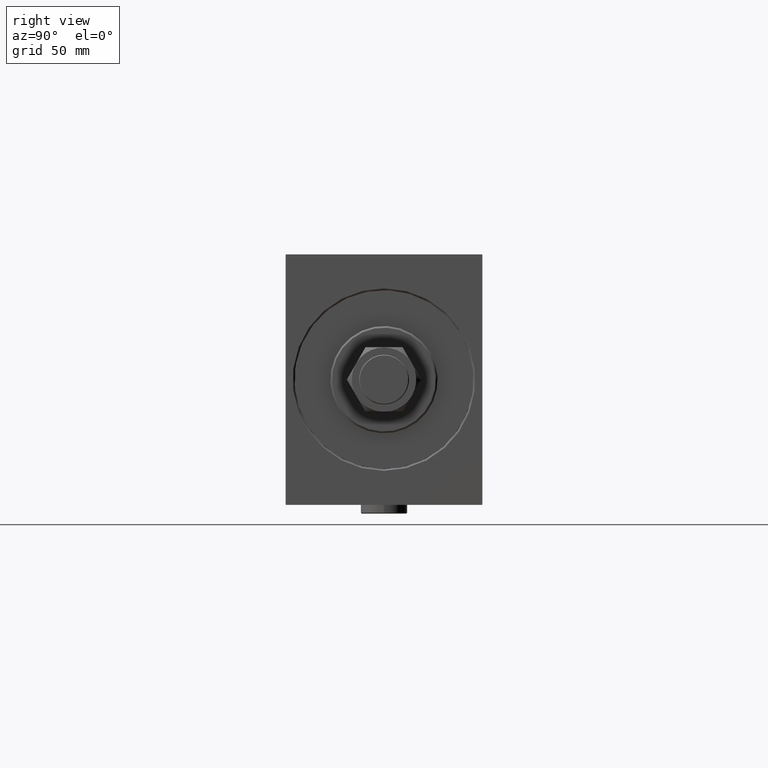
[diagram: clean part render]
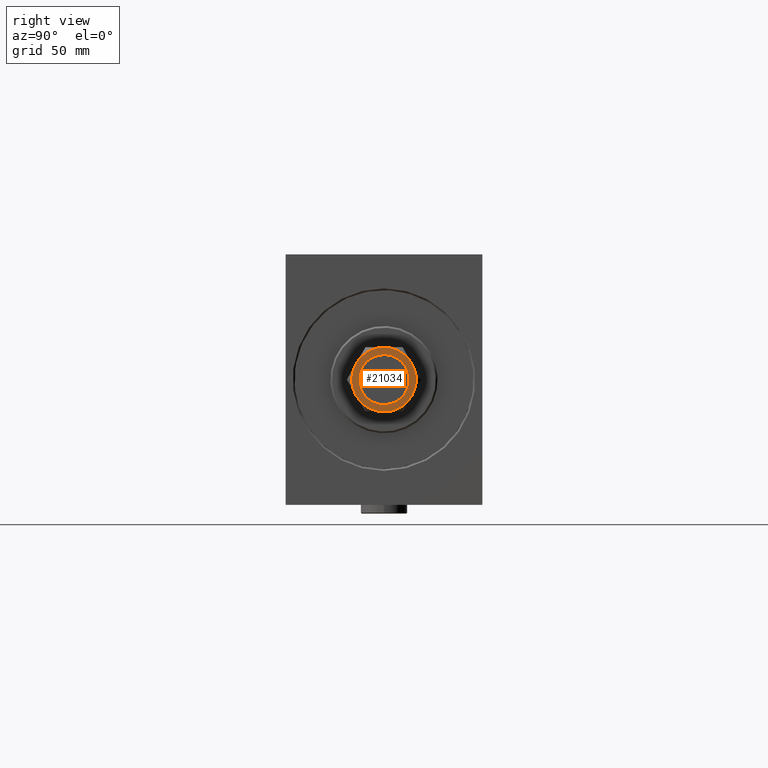
[diagram: same view with one face highlighted and labeled with its STEP entity id]
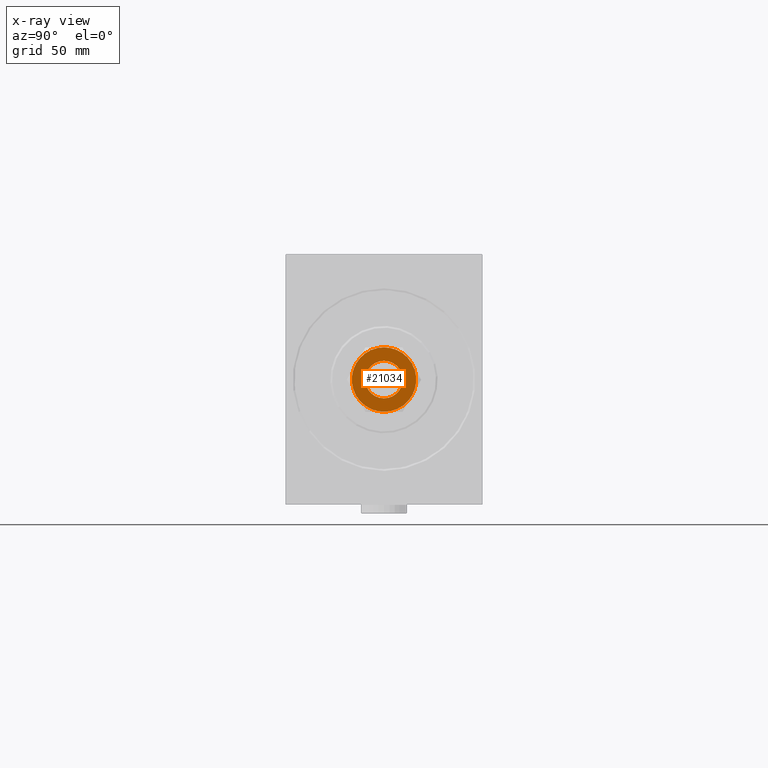
[diagram: x-ray of the same camera — body ghosted, the highlighted face saturated]
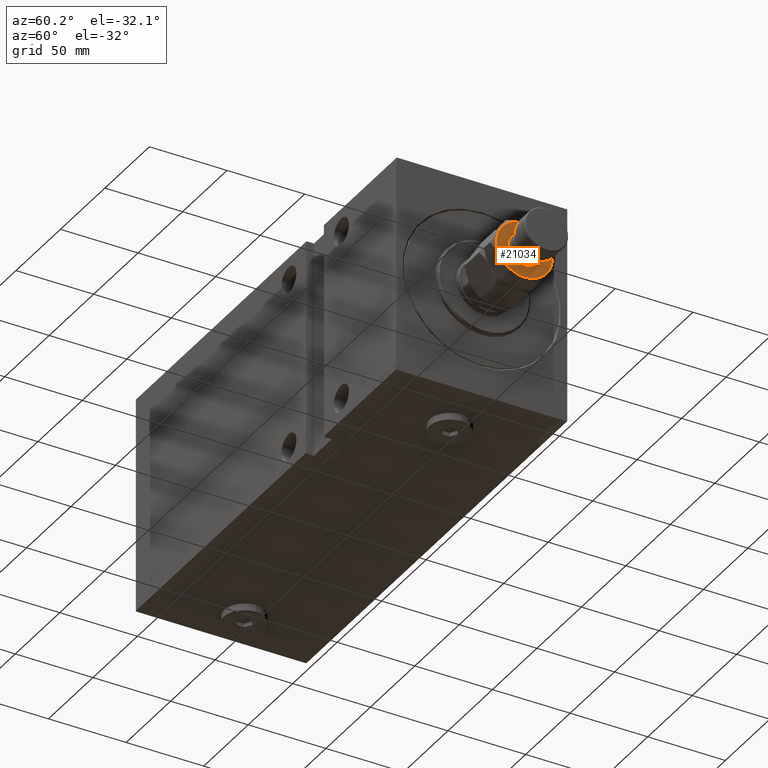
[diagram: same view with one face highlighted and labeled with its STEP entity id]
A machine part, right view. The second image highlights one B-rep face of the part: STEP entity #21034.
The next image is the same camera in x-ray: the body ghosted, the highlighted face saturated — about 0% of this face is hidden behind the body in this view.
A second angle (auxiliary view) of the same face is appended — the face is thin or edge-on in the first view.
In plain terms, the highlighted planar face has unit normal (1, 0, -0).
Its self-contained STEP definition (entity closure, byte-faithful):
#1693 = CARTESIAN_POINT ( 'NONE',  ( 17.99999999999999645, 0.000000000000000000, 34.00000000000000000 ) ) ;
#2579 = CARTESIAN_POINT ( 'NONE',  ( 9.000000000000001776, -15.58845726811988897, 34.00000000000000000 ) ) ;
#2742 = CARTESIAN_POINT ( 'NONE',  ( -9.000000000000000000, -15.58845726811989074, 34.00000000000000000 ) ) ;
#2952 = EDGE_CURVE ( 'NONE', #41872, #3849, #42502, .T. ) ;
#3080 = DIRECTION ( 'NONE',  ( 1.000000000000000000, 0.000000000000000000, 0.000000000000000000 ) ) ;
#3289 = DIRECTION ( 'NONE',  ( 1.000000000000000000, 0.000000000000000000, 0.000000000000000000 ) ) ;
#3849 = VERTEX_POINT ( 'NONE', #1693 ) ;
#3924 = VERTEX_POINT ( 'NONE', #29654 ) ;
#4811 = EDGE_CURVE ( 'NONE', #3849, #41171, #13560, .T. ) ;
#4974 = DIRECTION ( 'NONE',  ( 1.000000000000000000, 0.000000000000000000, 0.000000000000000000 ) ) ;
#5393 = DIRECTION ( 'NONE',  ( 0.000000000000000000, 0.000000000000000000, 1.000000000000000000 ) ) ;
#6183 = DIRECTION ( 'NONE',  ( 1.000000000000000000, 0.000000000000000000, 0.000000000000000000 ) ) ;
#6375 = CIRCLE ( 'NONE', #13771, 17.99999999999999645 ) ;
#7552 = FACE_OUTER_BOUND ( 'NONE', #7825, .T. ) ;
#7825 = EDGE_LOOP ( 'NONE', ( #35434, #40062, #23215, #14012, #12688, #39599 ) ) ;
#8063 = CARTESIAN_POINT ( 'NONE',  ( -10.49999999999999822, 1.285879139104720633E-15, 34.00000000000000000 ) ) ;
#8273 = CARTESIAN_POINT ( 'NONE',  ( 8.999999999999998224, 15.58845726811989074, 34.00000000000000000 ) ) ;
#11320 = AXIS2_PLACEMENT_3D ( 'NONE', #17513, #41524, #3080 ) ;
#12688 = ORIENTED_EDGE ( 'NONE', *, *, #37038, .T. ) ;
#12769 = CARTESIAN_POINT ( 'NONE',  ( 0.000000000000000000, 0.000000000000000000, 34.00000000000000000 ) ) ;
#13560 = CIRCLE ( 'NONE', #11320, 17.99999999999999645 ) ;
#13771 = AXIS2_PLACEMENT_3D ( 'NONE', #17129, #21094, #14083 ) ;
#14012 = ORIENTED_EDGE ( 'NONE', *, *, #45200, .T. ) ;
#14083 = DIRECTION ( 'NONE',  ( 1.000000000000000000, 0.000000000000000000, 0.000000000000000000 ) ) ;
#16212 = CARTESIAN_POINT ( 'NONE',  ( 0.000000000000000000, 0.000000000000000000, 34.00000000000000000 ) ) ;
#17129 = CARTESIAN_POINT ( 'NONE',  ( 0.000000000000000000, 0.000000000000000000, 34.00000000000000000 ) ) ;
#17358 = ORIENTED_EDGE ( 'NONE', *, *, #44352, .T. ) ;
#17509 = CIRCLE ( 'NONE', #26458, 17.99999999999999645 ) ;
#17513 = CARTESIAN_POINT ( 'NONE',  ( 0.000000000000000000, 0.000000000000000000, 34.00000000000000000 ) ) ;
#18042 = DIRECTION ( 'NONE',  ( 1.000000000000000000, 0.000000000000000000, -0.000000000000000000 ) ) ;
#18242 = CIRCLE ( 'NONE', #30882, 10.49999999999999822 ) ;
#18724 = PLANE ( 'NONE',  #39109 ) ;
#19083 = DIRECTION ( 'NONE',  ( 1.000000000000000000, 0.000000000000000000, 0.000000000000000000 ) ) ;
#19308 = DIRECTION ( 'NONE',  ( 0.000000000000000000, 0.000000000000000000, 1.000000000000000000 ) ) ;
#19474 = AXIS2_PLACEMENT_3D ( 'NONE', #35886, #42409, #3289 ) ;
#19590 = DIRECTION ( 'NONE',  ( 1.000000000000000000, 0.000000000000000000, 0.000000000000000000 ) ) ;
#20145 = EDGE_CURVE ( 'NONE', #41171, #3924, #28670, .T. ) ;
#21006 = AXIS2_PLACEMENT_3D ( 'NONE', #40098, #5393, #19590 ) ;
#21034 = ADVANCED_FACE ( 'NONE', ( #32717, #7552 ), #18724, .T. ) ;
#21094 = DIRECTION ( 'NONE',  ( 0.000000000000000000, 0.000000000000000000, 1.000000000000000000 ) ) ;
#21315 = CARTESIAN_POINT ( 'NONE',  ( 0.000000000000000000, 0.000000000000000000, 34.00000000000000000 ) ) ;
#22413 = AXIS2_PLACEMENT_3D ( 'NONE', #44098, #33617, #4974 ) ;
#22968 = DIRECTION ( 'NONE',  ( -0.000000000000000000, -0.000000000000000000, -1.000000000000000000 ) ) ;
#23215 = ORIENTED_EDGE ( 'NONE', *, *, #20145, .T. ) ;
#25497 = DIRECTION ( 'NONE',  ( 0.000000000000000000, 0.000000000000000000, 1.000000000000000000 ) ) ;
#26458 = AXIS2_PLACEMENT_3D ( 'NONE', #12769, #19308, #19083 ) ;
#27047 = VERTEX_POINT ( 'NONE', #2742 ) ;
#27803 = CARTESIAN_POINT ( 'NONE',  ( -17.99999999999999645, 0.000000000000000000, 34.00000000000000000 ) ) ;
#28670 = CIRCLE ( 'NONE', #39072, 17.99999999999999645 ) ;
#29654 = CARTESIAN_POINT ( 'NONE',  ( -9.000000000000000000, 15.58845726811988897, 34.00000000000000000 ) ) ;
#30094 = CARTESIAN_POINT ( 'NONE',  ( 10.49999999999999822, 0.000000000000000000, 34.00000000000000000 ) ) ;
#30882 = AXIS2_PLACEMENT_3D ( 'NONE', #16212, #22968, #41139 ) ;
#31855 = EDGE_LOOP ( 'NONE', ( #37884, #17358 ) ) ;
#32717 = FACE_BOUND ( 'NONE', #31855, .T. ) ;
#33036 = EDGE_CURVE ( 'NONE', #44739, #44193, #39564, .T. ) ;
#33617 = DIRECTION ( 'NONE',  ( 0.000000000000000000, 0.000000000000000000, 1.000000000000000000 ) ) ;
#34610 = DIRECTION ( 'NONE',  ( 0.000000000000000000, 0.000000000000000000, 1.000000000000000000 ) ) ;
#35434 = ORIENTED_EDGE ( 'NONE', *, *, #2952, .T. ) ;
#35886 = CARTESIAN_POINT ( 'NONE',  ( 0.000000000000000000, 0.000000000000000000, 34.00000000000000000 ) ) ;
#37038 = EDGE_CURVE ( 'NONE', #44632, #27047, #40358, .T. ) ;
#37884 = ORIENTED_EDGE ( 'NONE', *, *, #33036, .T. ) ;
#39072 = AXIS2_PLACEMENT_3D ( 'NONE', #21315, #34610, #6183 ) ;
#39109 = AXIS2_PLACEMENT_3D ( 'NONE', #43666, #25497, #18042 ) ;
#39564 = CIRCLE ( 'NONE', #19474, 10.49999999999999822 ) ;
#39599 = ORIENTED_EDGE ( 'NONE', *, *, #45312, .T. ) ;
#40062 = ORIENTED_EDGE ( 'NONE', *, *, #4811, .T. ) ;
#40098 = CARTESIAN_POINT ( 'NONE',  ( 0.000000000000000000, 0.000000000000000000, 34.00000000000000000 ) ) ;
#40358 = CIRCLE ( 'NONE', #21006, 17.99999999999999645 ) ;
#41139 = DIRECTION ( 'NONE',  ( 1.000000000000000000, 0.000000000000000000, 0.000000000000000000 ) ) ;
#41171 = VERTEX_POINT ( 'NONE', #8273 ) ;
#41524 = DIRECTION ( 'NONE',  ( 0.000000000000000000, 0.000000000000000000, 1.000000000000000000 ) ) ;
#41872 = VERTEX_POINT ( 'NONE', #2579 ) ;
#42409 = DIRECTION ( 'NONE',  ( -0.000000000000000000, -0.000000000000000000, -1.000000000000000000 ) ) ;
#42502 = CIRCLE ( 'NONE', #22413, 17.99999999999999645 ) ;
#43666 = CARTESIAN_POINT ( 'NONE',  ( 0.000000000000000000, 0.000000000000000000, 34.00000000000000000 ) ) ;
#44098 = CARTESIAN_POINT ( 'NONE',  ( 0.000000000000000000, 0.000000000000000000, 34.00000000000000000 ) ) ;
#44193 = VERTEX_POINT ( 'NONE', #8063 ) ;
#44352 = EDGE_CURVE ( 'NONE', #44193, #44739, #18242, .T. ) ;
#44632 = VERTEX_POINT ( 'NONE', #27803 ) ;
#44739 = VERTEX_POINT ( 'NONE', #30094 ) ;
#45200 = EDGE_CURVE ( 'NONE', #3924, #44632, #17509, .T. ) ;
#45312 = EDGE_CURVE ( 'NONE', #27047, #41872, #6375, .T. ) ;